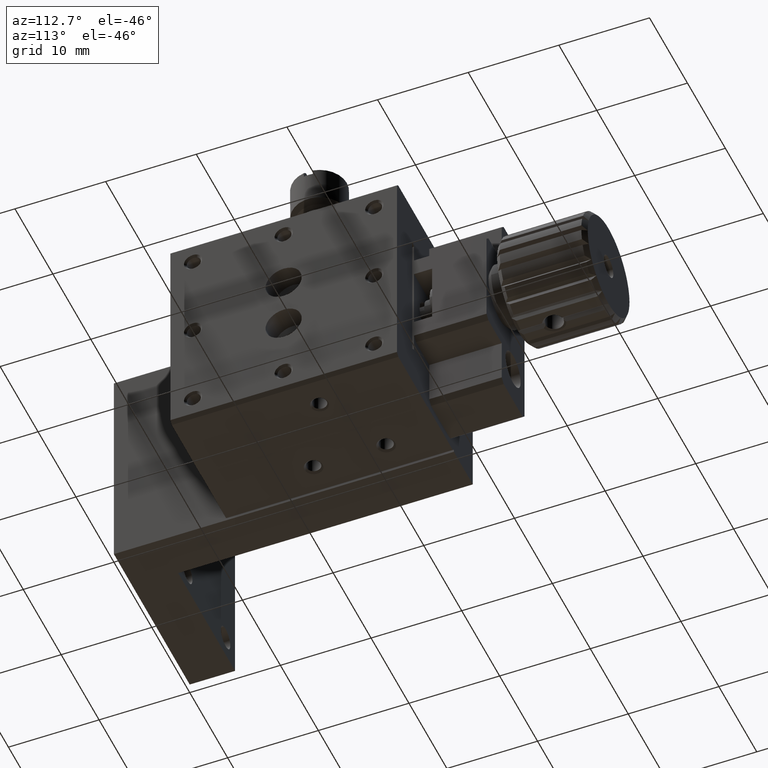
[diagram: clean part render]
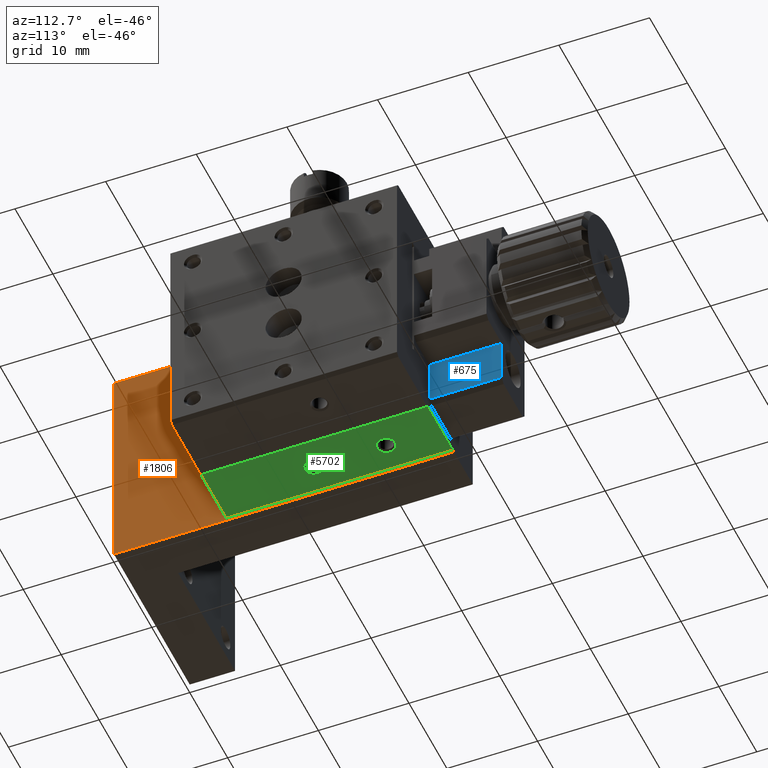
[diagram: same view with three faces highlighted in distinct colors, each labeled with its STEP entity id]
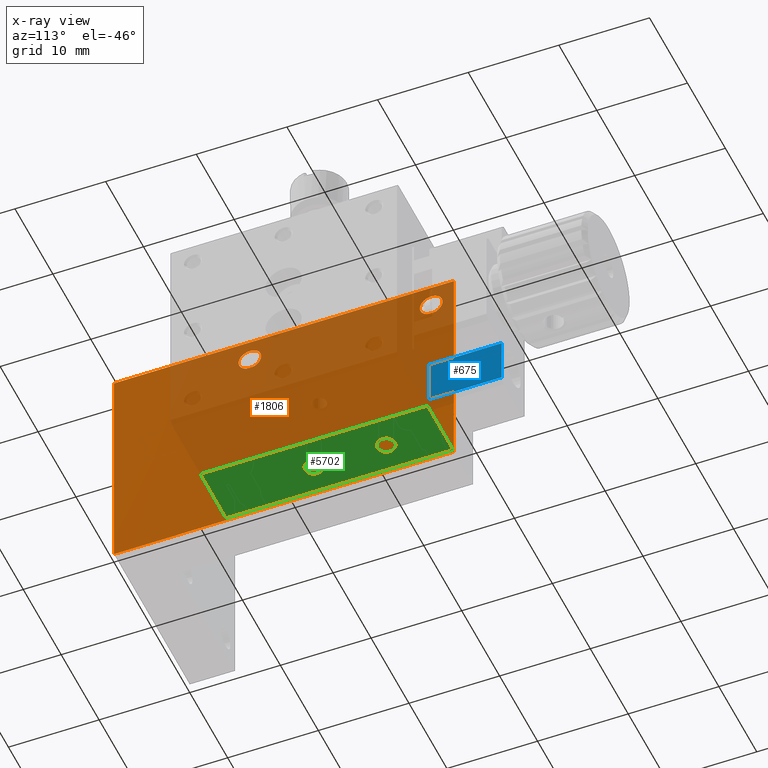
[diagram: x-ray of the same camera — body ghosted, the three highlighted faces saturated]
A machine part, auxiliary view with three faces highlighted in distinct colors.
The next image is the same camera in x-ray (body ghosted, the three faces saturated) — at least one of them is partly hidden behind the body in this view.
Their STEP definitions:

[orange] entity #1806 — the highlighted planar face has unit normal (1, 0, 0).
#65 = VECTOR ( 'NONE', #2969, 1000.000000000000000 ) ;
#308 = CARTESIAN_POINT ( 'NONE',  ( 0.000000000000000000, 0.000000000000000000, 0.000000000000000000 ) ) ;
#418 = DIRECTION ( 'NONE',  ( -1.000000000000000000, -0.000000000000000000, -0.000000000000000000 ) ) ;
#510 = AXIS2_PLACEMENT_3D ( 'NONE', #3174, #418, #2438 ) ;
#599 = DIRECTION ( 'NONE',  ( -0.000000000000000000, -0.000000000000000000, 1.000000000000000000 ) ) ;
#712 = FACE_BOUND ( 'NONE', #7738, .T. ) ;
#828 = VECTOR ( 'NONE', #5900, 1000.000000000000000 ) ;
#858 = EDGE_CURVE ( 'NONE', #1283, #1283, #1860, .T. ) ;
#896 = ORIENTED_EDGE ( 'NONE', *, *, #4252, .T. ) ;
#1001 = VERTEX_POINT ( 'NONE', #3560 ) ;
#1247 = CARTESIAN_POINT ( 'NONE',  ( -5.684341886080801487E-11, 35.00000000000000000, -23.74999999994997779 ) ) ;
#1253 = VERTEX_POINT ( 'NONE', #7825 ) ;
#1283 = VERTEX_POINT ( 'NONE', #1247 ) ;
#1299 = EDGE_LOOP ( 'NONE', ( #1403 ) ) ;
#1367 = LINE ( 'NONE', #7289, #828 ) ;
#1403 = ORIENTED_EDGE ( 'NONE', *, *, #8203, .T. ) ;
#1472 = CARTESIAN_POINT ( 'NONE',  ( 0.000000000000000000, 0.000000000000000000, -25.00000000000000000 ) ) ;
#1580 = VERTEX_POINT ( 'NONE', #5885 ) ;
#1626 = DIRECTION ( 'NONE',  ( 0.000000000000000000, 0.000000000000000000, -1.000000000000000000 ) ) ;
#1806 = ADVANCED_FACE ( 'NONE', ( #3337, #712, #5429, #6125, #6776 ), #3379, .T. ) ;
#1836 = DIRECTION ( 'NONE',  ( -1.000000000000000000, -0.000000000000000000, -0.000000000000000000 ) ) ;
#1852 = EDGE_LOOP ( 'NONE', ( #7030 ) ) ;
#1860 = CIRCLE ( 'NONE', #2421, 1.249999999949978680 ) ;
#1909 = VECTOR ( 'NONE', #599, 1000.000000000000000 ) ;
#2396 = EDGE_CURVE ( 'NONE', #1580, #1001, #3637, .T. ) ;
#2421 = AXIS2_PLACEMENT_3D ( 'NONE', #7964, #5867, #6039 ) ;
#2438 = DIRECTION ( 'NONE',  ( 0.000000000000000000, 0.000000000000000000, -1.000000000000000000 ) ) ;
#2969 = DIRECTION ( 'NONE',  ( 0.000000000000000000, -1.000000000000000000, -0.000000000000000000 ) ) ;
#3174 = CARTESIAN_POINT ( 'NONE',  ( 0.000000000000000000, 35.00000000000000000, -2.500000000000000000 ) ) ;
#3337 = FACE_OUTER_BOUND ( 'NONE', #4987, .T. ) ;
#3379 = PLANE ( 'NONE',  #3407 ) ;
#3407 = AXIS2_PLACEMENT_3D ( 'NONE', #7476, #7960, #6036 ) ;
#3560 = CARTESIAN_POINT ( 'NONE',  ( 0.000000000000000000, 0.000000000000000000, 0.000000000000000000 ) ) ;
#3601 = VECTOR ( 'NONE', #6030, 1000.000000000000000 ) ;
#3637 = LINE ( 'NONE', #308, #65 ) ;
#3926 = VERTEX_POINT ( 'NONE', #7987 ) ;
#3958 = LINE ( 'NONE', #6575, #1909 ) ;
#4252 = EDGE_CURVE ( 'NONE', #3926, #3926, #4978, .T. ) ;
#4532 = DIRECTION ( 'NONE',  ( 0.000000000000000000, 0.000000000000000000, -1.000000000000000000 ) ) ;
#4978 = CIRCLE ( 'NONE', #5397, 1.249999999949978680 ) ;
#4987 = EDGE_LOOP ( 'NONE', ( #8590, #6741, #6965, #7183 ) ) ;
#5012 = AXIS2_PLACEMENT_3D ( 'NONE', #7468, #5560, #1626 ) ;
#5332 = EDGE_LOOP ( 'NONE', ( #896 ) ) ;
#5397 = AXIS2_PLACEMENT_3D ( 'NONE', #7236, #1836, #4532 ) ;
#5429 = FACE_BOUND ( 'NONE', #1299, .T. ) ;
#5560 = DIRECTION ( 'NONE',  ( -1.000000000000000000, -0.000000000000000000, -0.000000000000000000 ) ) ;
#5627 = CARTESIAN_POINT ( 'NONE',  ( 0.000000000000000000, 15.00000000000000000, -3.749999999968167685 ) ) ;
#5707 = CIRCLE ( 'NONE', #5012, 1.249999999968167685 ) ;
#5790 = EDGE_CURVE ( 'NONE', #1001, #8474, #6638, .T. ) ;
#5867 = DIRECTION ( 'NONE',  ( -1.000000000000000000, -0.000000000000000000, -0.000000000000000000 ) ) ;
#5885 = CARTESIAN_POINT ( 'NONE',  ( 0.000000000000000000, 37.50000000000000000, 0.000000000000000000 ) ) ;
#5900 = DIRECTION ( 'NONE',  ( -0.000000000000000000, 1.000000000000000000, 0.000000000000000000 ) ) ;
#6030 = DIRECTION ( 'NONE',  ( 0.000000000000000000, 0.000000000000000000, -1.000000000000000000 ) ) ;
#6036 = DIRECTION ( 'NONE',  ( 0.000000000000000000, 0.000000000000000000, -1.000000000000000000 ) ) ;
#6039 = DIRECTION ( 'NONE',  ( 0.000000000000000000, 0.000000000000000000, -1.000000000000000000 ) ) ;
#6116 = ORIENTED_EDGE ( 'NONE', *, *, #7035, .T. ) ;
#6125 = FACE_BOUND ( 'NONE', #1852, .T. ) ;
#6194 = VERTEX_POINT ( 'NONE', #5627 ) ;
#6508 = CIRCLE ( 'NONE', #510, 1.249999999968167685 ) ;
#6575 = CARTESIAN_POINT ( 'NONE',  ( 0.000000000000000000, 37.50000000000000000, -25.00000000000000000 ) ) ;
#6638 = LINE ( 'NONE', #7997, #3601 ) ;
#6741 = ORIENTED_EDGE ( 'NONE', *, *, #7843, .T. ) ;
#6776 = FACE_BOUND ( 'NONE', #5332, .T. ) ;
#6965 = ORIENTED_EDGE ( 'NONE', *, *, #2396, .T. ) ;
#6971 = EDGE_CURVE ( 'NONE', #8474, #1253, #1367, .T. ) ;
#7030 = ORIENTED_EDGE ( 'NONE', *, *, #858, .T. ) ;
#7035 = EDGE_CURVE ( 'NONE', #6194, #6194, #5707, .T. ) ;
#7183 = ORIENTED_EDGE ( 'NONE', *, *, #5790, .T. ) ;
#7236 = CARTESIAN_POINT ( 'NONE',  ( -5.684341886080801487E-11, 15.00000000000000000, -22.50000000000000000 ) ) ;
#7289 = CARTESIAN_POINT ( 'NONE',  ( 0.000000000000000000, 0.000000000000000000, -25.00000000000000000 ) ) ;
#7468 = CARTESIAN_POINT ( 'NONE',  ( 0.000000000000000000, 15.00000000000000000, -2.500000000000000000 ) ) ;
#7476 = CARTESIAN_POINT ( 'NONE',  ( 0.000000000000000000, 0.000000000000000000, -25.00000000000000000 ) ) ;
#7738 = EDGE_LOOP ( 'NONE', ( #6116 ) ) ;
#7825 = CARTESIAN_POINT ( 'NONE',  ( 0.000000000000000000, 37.50000000000000000, -25.00000000000000000 ) ) ;
#7843 = EDGE_CURVE ( 'NONE', #1253, #1580, #3958, .T. ) ;
#7960 = DIRECTION ( 'NONE',  ( 1.000000000000000000, 0.000000000000000000, 0.000000000000000000 ) ) ;
#7964 = CARTESIAN_POINT ( 'NONE',  ( -5.684341886080801487E-11, 35.00000000000000000, -22.50000000000000000 ) ) ;
#7987 = CARTESIAN_POINT ( 'NONE',  ( -5.684341886080801487E-11, 15.00000000000000000, -23.74999999994997779 ) ) ;
#7997 = CARTESIAN_POINT ( 'NONE',  ( 0.000000000000000000, 0.000000000000000000, -25.00000000000000000 ) ) ;
#8203 = EDGE_CURVE ( 'NONE', #8406, #8406, #6508, .T. ) ;
#8406 = VERTEX_POINT ( 'NONE', #8496 ) ;
#8474 = VERTEX_POINT ( 'NONE', #1472 ) ;
#8496 = CARTESIAN_POINT ( 'NONE',  ( 0.000000000000000000, 35.00000000000000000, -3.749999999968167685 ) ) ;
#8590 = ORIENTED_EDGE ( 'NONE', *, *, #6971, .T. ) ;

[blue] entity #675 — the highlighted planar face has unit normal (1, 0, -0).
#579 = DIRECTION ( 'NONE',  ( 0.000000000000000000, 0.000000000000000000, 1.000000000000000000 ) ) ;
#600 = VECTOR ( 'NONE', #579, 1000.000000000000000 ) ;
#675 = ADVANCED_FACE ( 'NONE', ( #3614 ), #2869, .T. ) ;
#1323 = EDGE_CURVE ( 'NONE', #3894, #4188, #6515, .T. ) ;
#1526 = CARTESIAN_POINT ( 'NONE',  ( 6.499999999999999112, 45.50000000000000000, -23.49999999999999645 ) ) ;
#1664 = ORIENTED_EDGE ( 'NONE', *, *, #7451, .T. ) ;
#1781 = EDGE_LOOP ( 'NONE', ( #5657, #1664, #4311, #3603 ) ) ;
#2101 = CARTESIAN_POINT ( 'NONE',  ( 6.499999999999999112, 45.50000000000000000, -18.49999999999999645 ) ) ;
#2221 = DIRECTION ( 'NONE',  ( 0.000000000000000000, 0.000000000000000000, 1.000000000000000000 ) ) ;
#2629 = VECTOR ( 'NONE', #7458, 1000.000000000000000 ) ;
#2796 = DIRECTION ( 'NONE',  ( 0.000000000000000000, 0.000000000000000000, -1.000000000000000000 ) ) ;
#2869 = PLANE ( 'NONE',  #7847 ) ;
#3579 = CARTESIAN_POINT ( 'NONE',  ( 6.499999999999999112, 37.50000000000000000, -23.49999999999999645 ) ) ;
#3595 = VECTOR ( 'NONE', #6106, 1000.000000000000000 ) ;
#3603 = ORIENTED_EDGE ( 'NONE', *, *, #4473, .T. ) ;
#3614 = FACE_OUTER_BOUND ( 'NONE', #1781, .T. ) ;
#3894 = VERTEX_POINT ( 'NONE', #1526 ) ;
#4001 = VECTOR ( 'NONE', #2796, 1000.000000000000000 ) ;
#4188 = VERTEX_POINT ( 'NONE', #5514 ) ;
#4311 = ORIENTED_EDGE ( 'NONE', *, *, #7938, .T. ) ;
#4473 = EDGE_CURVE ( 'NONE', #8047, #3894, #7412, .T. ) ;
#5462 = CARTESIAN_POINT ( 'NONE',  ( 6.499999999999999112, 37.50000000000000000, -18.49999999999999645 ) ) ;
#5514 = CARTESIAN_POINT ( 'NONE',  ( 6.499999999999999112, 45.50000000000000000, -18.49999999999999645 ) ) ;
#5527 = CARTESIAN_POINT ( 'NONE',  ( 6.499999999999999112, 45.50000000000000000, -23.49999999999999645 ) ) ;
#5657 = ORIENTED_EDGE ( 'NONE', *, *, #1323, .T. ) ;
#5832 = VERTEX_POINT ( 'NONE', #5462 ) ;
#6013 = CARTESIAN_POINT ( 'NONE',  ( 6.499999999999999112, 37.50000000000000000, 3.061616997868380282E-15 ) ) ;
#6106 = DIRECTION ( 'NONE',  ( -0.000000000000000000, 1.000000000000000000, -0.000000000000000000 ) ) ;
#6515 = LINE ( 'NONE', #6557, #600 ) ;
#6557 = CARTESIAN_POINT ( 'NONE',  ( 6.499999999999999112, 45.50000000000000000, -23.49999999999999645 ) ) ;
#6626 = CARTESIAN_POINT ( 'NONE',  ( 6.499999999999999112, 45.50000000000000000, -23.49999999999999645 ) ) ;
#6753 = LINE ( 'NONE', #6013, #4001 ) ;
#6844 = LINE ( 'NONE', #2101, #2629 ) ;
#7412 = LINE ( 'NONE', #6626, #3595 ) ;
#7451 = EDGE_CURVE ( 'NONE', #4188, #5832, #6844, .T. ) ;
#7458 = DIRECTION ( 'NONE',  ( 0.000000000000000000, -1.000000000000000000, 0.000000000000000000 ) ) ;
#7847 = AXIS2_PLACEMENT_3D ( 'NONE', #5527, #8185, #2221 ) ;
#7938 = EDGE_CURVE ( 'NONE', #5832, #8047, #6753, .T. ) ;
#8047 = VERTEX_POINT ( 'NONE', #3579 ) ;
#8185 = DIRECTION ( 'NONE',  ( 1.000000000000000000, 0.000000000000000000, -0.000000000000000000 ) ) ;

[green] entity #5702 — the highlighted planar face has unit normal (0, 0, 1).
#8 = PLANE ( 'NONE',  #2631 ) ;
#88 = EDGE_LOOP ( 'NONE', ( #657, #425, #2889, #1993 ) ) ;
#152 = LINE ( 'NONE', #2160, #5396 ) ;
#166 = CARTESIAN_POINT ( 'NONE',  ( 6.999999999999998224, 12.49999999999999645, -24.99999999999999645 ) ) ;
#425 = ORIENTED_EDGE ( 'NONE', *, *, #895, .F. ) ;
#458 = VECTOR ( 'NONE', #7145, 1000.000000000000000 ) ;
#541 = CARTESIAN_POINT ( 'NONE',  ( 0.3000000000000084821, 12.49999999999999645, -24.99999999999999645 ) ) ;
#657 = ORIENTED_EDGE ( 'NONE', *, *, #1219, .T. ) ;
#748 = DIRECTION ( 'NONE',  ( 0.000000000000000000, 0.000000000000000000, -1.000000000000000000 ) ) ;
#891 = CARTESIAN_POINT ( 'NONE',  ( 0.3000000000000109246, 12.49999999999999645, -24.99999999999999645 ) ) ;
#895 = EDGE_CURVE ( 'NONE', #5510, #3885, #5954, .T. ) ;
#955 = DIRECTION ( 'NONE',  ( 0.000000000000000000, 1.000000000000000000, 0.000000000000000000 ) ) ;
#1019 = VECTOR ( 'NONE', #7915, 1000.000000000000000 ) ;
#1142 = LINE ( 'NONE', #7155, #1019 ) ;
#1219 = EDGE_CURVE ( 'NONE', #7222, #3885, #1142, .T. ) ;
#1570 = DIRECTION ( 'NONE',  ( 0.000000000000000000, 0.000000000000000000, -1.000000000000000000 ) ) ;
#1612 = CARTESIAN_POINT ( 'NONE',  ( 3.499999999999998224, 23.50000000000000000, -24.99999999997725908 ) ) ;
#1648 = EDGE_CURVE ( 'NONE', #2292, #7222, #5234, .T. ) ;
#1680 = EDGE_LOOP ( 'NONE', ( #4614 ) ) ;
#1993 = ORIENTED_EDGE ( 'NONE', *, *, #1648, .T. ) ;
#2063 = EDGE_LOOP ( 'NONE', ( #5763 ) ) ;
#2160 = CARTESIAN_POINT ( 'NONE',  ( 0.3000000000000180300, 12.49999999999999645, -24.99999999999998934 ) ) ;
#2247 = EDGE_CURVE ( 'NONE', #5865, #5865, #4247, .T. ) ;
#2292 = VERTEX_POINT ( 'NONE', #7595 ) ;
#2436 = AXIS2_PLACEMENT_3D ( 'NONE', #4026, #748, #4592 ) ;
#2631 = AXIS2_PLACEMENT_3D ( 'NONE', #541, #3937, #6595 ) ;
#2889 = ORIENTED_EDGE ( 'NONE', *, *, #5435, .T. ) ;
#3005 = CARTESIAN_POINT ( 'NONE',  ( 3.499999999999998224, 24.50000000008003553, -24.99999999997725908 ) ) ;
#3592 = AXIS2_PLACEMENT_3D ( 'NONE', #1612, #1570, #955 ) ;
#3885 = VERTEX_POINT ( 'NONE', #166 ) ;
#3937 = DIRECTION ( 'NONE',  ( 0.000000000000000000, 0.000000000000000000, 1.000000000000000000 ) ) ;
#4026 = CARTESIAN_POINT ( 'NONE',  ( 3.499999999999998224, 31.50000000000000000, -24.99999999992041566 ) ) ;
#4247 = CIRCLE ( 'NONE', #2436, 1.000000000004545919 ) ;
#4398 = VERTEX_POINT ( 'NONE', #3005 ) ;
#4592 = DIRECTION ( 'NONE',  ( 0.000000000000000000, 1.000000000000000000, 0.000000000000000000 ) ) ;
#4614 = ORIENTED_EDGE ( 'NONE', *, *, #2247, .F. ) ;
#5113 = CARTESIAN_POINT ( 'NONE',  ( 6.999999999999998224, 37.50000000000000000, -24.99999999999999645 ) ) ;
#5234 = LINE ( 'NONE', #6097, #458 ) ;
#5396 = VECTOR ( 'NONE', #5472, 1000.000000000000000 ) ;
#5435 = EDGE_CURVE ( 'NONE', #5510, #2292, #152, .T. ) ;
#5472 = DIRECTION ( 'NONE',  ( -0.000000000000000000, 1.000000000000000000, -0.000000000000000000 ) ) ;
#5510 = VERTEX_POINT ( 'NONE', #891 ) ;
#5702 = ADVANCED_FACE ( 'NONE', ( #5989, #6516, #7156 ), #8, .F. ) ;
#5763 = ORIENTED_EDGE ( 'NONE', *, *, #8140, .F. ) ;
#5865 = VERTEX_POINT ( 'NONE', #8521 ) ;
#5954 = LINE ( 'NONE', #7299, #6034 ) ;
#5989 = FACE_OUTER_BOUND ( 'NONE', #88, .T. ) ;
#6034 = VECTOR ( 'NONE', #8616, 1000.000000000000000 ) ;
#6097 = CARTESIAN_POINT ( 'NONE',  ( -1.530808498934190141E-15, 37.50000000000000000, -24.99999999999999645 ) ) ;
#6516 = FACE_BOUND ( 'NONE', #1680, .T. ) ;
#6595 = DIRECTION ( 'NONE',  ( 0.000000000000000000, -1.000000000000000000, 0.000000000000000000 ) ) ;
#6921 = CIRCLE ( 'NONE', #3592, 1.000000000080034201 ) ;
#7145 = DIRECTION ( 'NONE',  ( 1.000000000000000000, 0.000000000000000000, 0.000000000000000000 ) ) ;
#7155 = CARTESIAN_POINT ( 'NONE',  ( 6.999999999999998224, 12.49999999999999645, -24.99999999999999645 ) ) ;
#7156 = FACE_BOUND ( 'NONE', #2063, .T. ) ;
#7222 = VERTEX_POINT ( 'NONE', #5113 ) ;
#7299 = CARTESIAN_POINT ( 'NONE',  ( -1.530808498934190141E-15, 12.49999999999999645, -24.99999999999999645 ) ) ;
#7595 = CARTESIAN_POINT ( 'NONE',  ( 0.3000000000000133671, 37.50000000000000711, -24.99999999999999289 ) ) ;
#7915 = DIRECTION ( 'NONE',  ( 0.000000000000000000, -1.000000000000000000, 0.000000000000000000 ) ) ;
#8140 = EDGE_CURVE ( 'NONE', #4398, #4398, #6921, .T. ) ;
#8521 = CARTESIAN_POINT ( 'NONE',  ( 3.499999999999998224, 32.50000000000454747, -24.99999999992041566 ) ) ;
#8616 = DIRECTION ( 'NONE',  ( 1.000000000000000000, 0.000000000000000000, 0.000000000000000000 ) ) ;